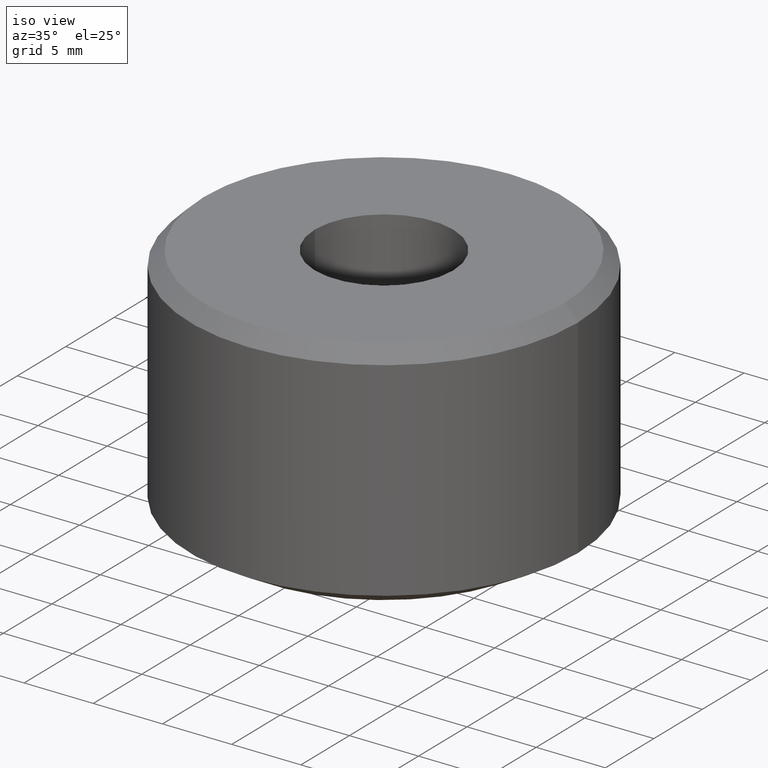
[diagram: clean part render]
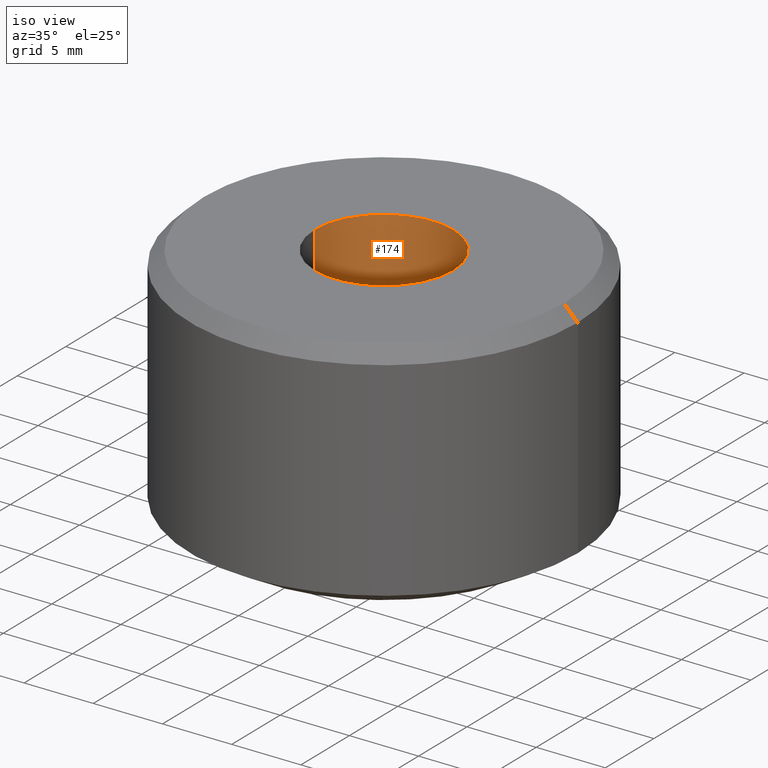
[diagram: same view with one face highlighted and labeled with its STEP entity id]
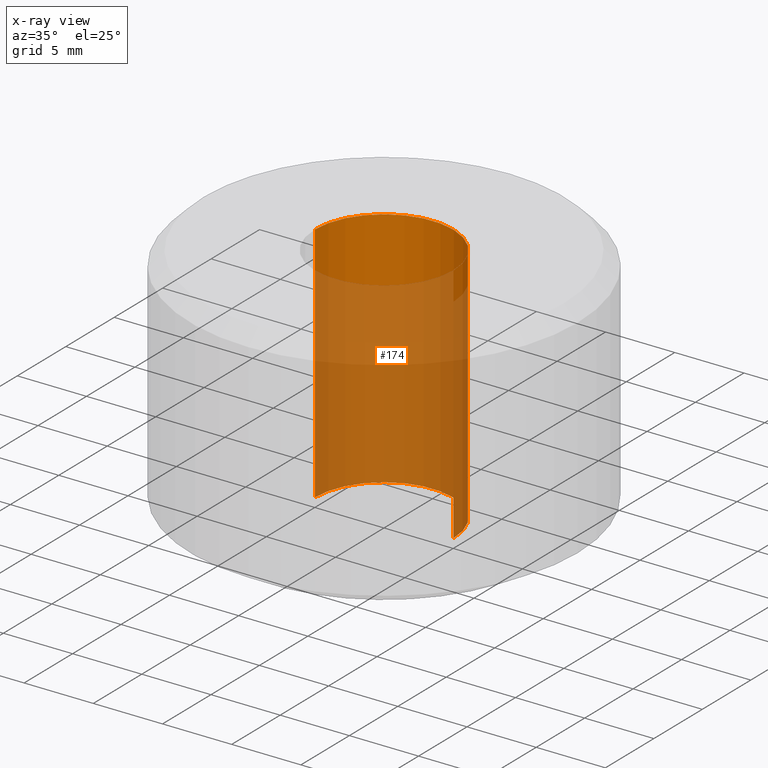
[diagram: x-ray of the same camera — body ghosted, the highlighted face saturated]
A machine part, iso view. The second image highlights one B-rep face of the part: STEP entity #174.
The next image is the same camera in x-ray: the body ghosted, the highlighted face saturated — about 77% of this face is hidden behind the body in this view.
In plain terms, the highlighted cylindrical surface (partial cylindrical patch) has radius 5 mm, axis along (-0, -0, -1).
Its self-contained STEP definition (entity closure, byte-faithful):
#4 = ORIENTED_EDGE ( 'NONE', *, *, #27, .F. ) ;
#16 = AXIS2_PLACEMENT_3D ( 'NONE', #46, #52, #67 ) ;
#19 = CARTESIAN_POINT ( 'NONE',  ( -5.000000000000000000, -5.551115123125782700E-014, 4.611310910794871800E-013 ) ) ;
#27 = EDGE_CURVE ( 'NONE', #161, #101, #286, .T. ) ;
#33 = CARTESIAN_POINT ( 'NONE',  ( -4.999999999999999100, -5.551115123125782700E-014, 17.50000000000007100 ) ) ;
#36 = ORIENTED_EDGE ( 'NONE', *, *, #283, .T. ) ;
#38 = CARTESIAN_POINT ( 'NONE',  ( 0.0000000000000000000, -5.551115123125782700E-014, 17.50000000000007100 ) ) ;
#42 = CYLINDRICAL_SURFACE ( 'NONE', #173, 4.999999999999999100 ) ;
#46 = CARTESIAN_POINT ( 'NONE',  ( 0.0000000000000000000, -5.551115123125782700E-014, 4.611310910794871800E-013 ) ) ;
#49 = VERTEX_POINT ( 'NONE', #19 ) ;
#52 = DIRECTION ( 'NONE',  ( -0.0000000000000000000, -0.0000000000000000000, -1.000000000000000000 ) ) ;
#53 = DIRECTION ( 'NONE',  ( -0.0000000000000000000, -0.0000000000000000000, -1.000000000000000000 ) ) ;
#56 = LINE ( 'NONE', #124, #270 ) ;
#67 = DIRECTION ( 'NONE',  ( -1.000000000000000000, 0.0000000000000000000, 0.0000000000000000000 ) ) ;
#68 = CARTESIAN_POINT ( 'NONE',  ( -4.999999999999999100, -5.551115123125782700E-014, 4.831493894172288300E-013 ) ) ;
#76 = DIRECTION ( 'NONE',  ( -1.000000000000000000, 0.0000000000000000000, 0.0000000000000000000 ) ) ;
#84 = CARTESIAN_POINT ( 'NONE',  ( 0.0000000000000000000, -5.551115123125782700E-014, 4.831493894172288300E-013 ) ) ;
#101 = VERTEX_POINT ( 'NONE', #213 ) ;
#124 = CARTESIAN_POINT ( 'NONE',  ( 4.999999999999999100, -5.489882783168415100E-014, 4.831493894172288300E-013 ) ) ;
#137 = EDGE_LOOP ( 'NONE', ( #156, #4, #291, #36 ) ) ;
#144 = CIRCLE ( 'NONE', #16, 5.000000000000000000 ) ;
#145 = CARTESIAN_POINT ( 'NONE',  ( 5.000000000000000000, -5.489882783168415100E-014, 4.611310910794871800E-013 ) ) ;
#156 = ORIENTED_EDGE ( 'NONE', *, *, #209, .F. ) ;
#160 = LINE ( 'NONE', #68, #272 ) ;
#161 = VERTEX_POINT ( 'NONE', #33 ) ;
#162 = DIRECTION ( 'NONE',  ( -0.0000000000000000000, -0.0000000000000000000, -1.000000000000000000 ) ) ;
#173 = AXIS2_PLACEMENT_3D ( 'NONE', #84, #53, #76 ) ;
#174 = ADVANCED_FACE ( 'NONE', ( #200 ), #42, .F. ) ;
#178 = EDGE_CURVE ( 'NONE', #161, #49, #160, .T. ) ;
#182 = DIRECTION ( 'NONE',  ( -0.0000000000000000000, -0.0000000000000000000, -1.000000000000000000 ) ) ;
#200 = FACE_OUTER_BOUND ( 'NONE', #137, .T. ) ;
#209 = EDGE_CURVE ( 'NONE', #101, #295, #56, .T. ) ;
#213 = CARTESIAN_POINT ( 'NONE',  ( 4.999999999999999100, -5.489882783168415100E-014, 17.50000000000007100 ) ) ;
#248 = DIRECTION ( 'NONE',  ( -1.000000000000000000, 0.0000000000000000000, 0.0000000000000000000 ) ) ;
#270 = VECTOR ( 'NONE', #182, 1000.000000000000000 ) ;
#272 = VECTOR ( 'NONE', #162, 1000.000000000000000 ) ;
#283 = EDGE_CURVE ( 'NONE', #49, #295, #144, .T. ) ;
#286 = CIRCLE ( 'NONE', #303, 4.999999999999999100 ) ;
#291 = ORIENTED_EDGE ( 'NONE', *, *, #178, .T. ) ;
#295 = VERTEX_POINT ( 'NONE', #145 ) ;
#303 = AXIS2_PLACEMENT_3D ( 'NONE', #38, #322, #248 ) ;
#322 = DIRECTION ( 'NONE',  ( -0.0000000000000000000, -0.0000000000000000000, -1.000000000000000000 ) ) ;